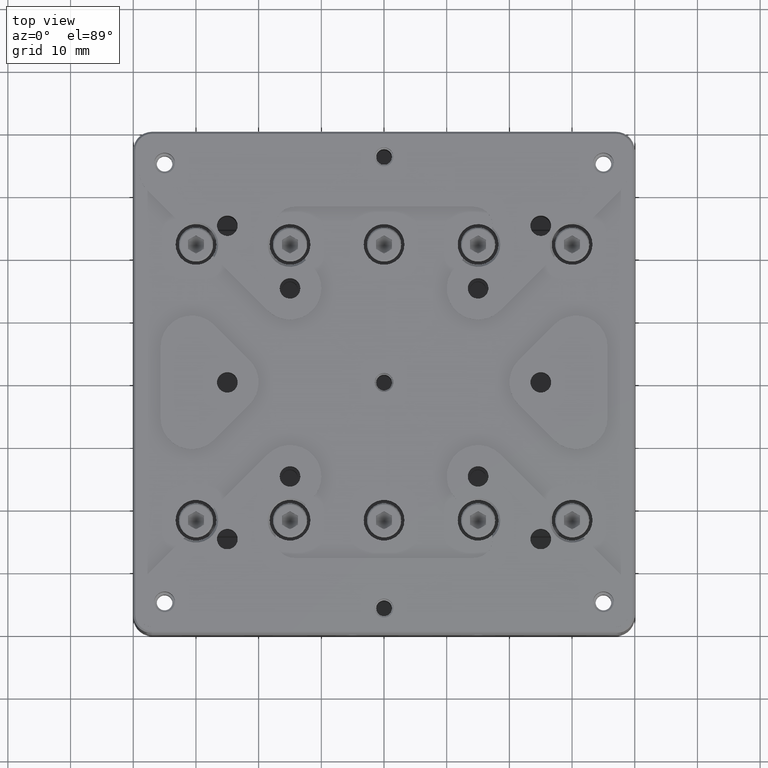
[diagram: clean part render]
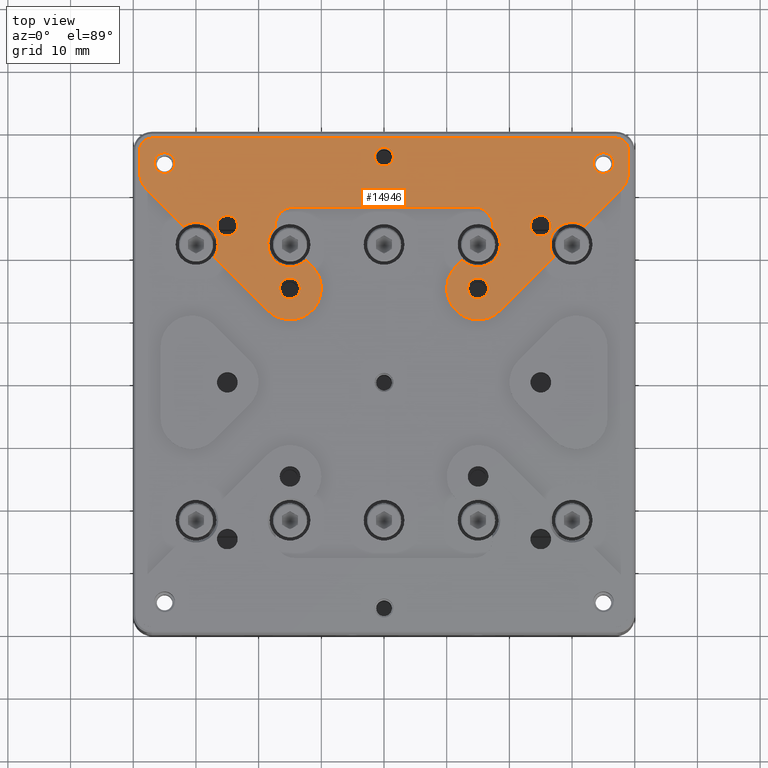
[diagram: same view with one face highlighted and labeled with its STEP entity id]
A machine part, top view. The second image highlights one B-rep face of the part: STEP entity #14946.
In plain terms, the highlighted planar face has unit normal (0, 0, 1).
Its self-contained STEP definition (entity closure, byte-faithful):
#63 = ORIENTED_EDGE ( 'NONE', *, *, #15673, .T. ) ;
#90 = AXIS2_PLACEMENT_3D ( 'NONE', #2022, #17900, #4223 ) ;
#97 = DIRECTION ( 'NONE',  ( 0.000000000000000000, 0.000000000000000000, -1.000000000000000000 ) ) ;
#105 = CARTESIAN_POINT ( 'NONE',  ( 37.00000000000000000, 39.00000000000000000, 13.50000000000000000 ) ) ;
#188 = CARTESIAN_POINT ( 'NONE',  ( -12.45448729300002100, 19.52555766354505096, 13.50000000007865886 ) ) ;
#375 = DIRECTION ( 'NONE',  ( 1.000000000000000000, 9.773090005428777865E-16, 0.000000000000000000 ) ) ;
#423 = EDGE_CURVE ( 'NONE', #2379, #8482, #11636, .T. ) ;
#428 = VERTEX_POINT ( 'NONE', #188 ) ;
#559 = CARTESIAN_POINT ( 'NONE',  ( -30.00000000000000000, 22.00000000000000000, 13.50000000002181899 ) ) ;
#564 = EDGE_CURVE ( 'NONE', #8544, #5840, #13985, .T. ) ;
#660 = EDGE_LOOP ( 'NONE', ( #28258, #22412 ) ) ;
#790 = VERTEX_POINT ( 'NONE', #3554 ) ;
#892 = DIRECTION ( 'NONE',  ( 0.000000000000000000, 0.000000000000000000, 1.000000000000000000 ) ) ;
#924 = CARTESIAN_POINT ( 'NONE',  ( -27.06864897802624625, 19.99758116616625259, 13.50000000001150013 ) ) ;
#950 = AXIS2_PLACEMENT_3D ( 'NONE', #26748, #20272, #6611 ) ;
#961 = VERTEX_POINT ( 'NONE', #7014 ) ;
#982 = EDGE_CURVE ( 'NONE', #20919, #428, #14825, .T. ) ;
#991 = ORIENTED_EDGE ( 'NONE', *, *, #10588, .T. ) ;
#1046 = EDGE_CURVE ( 'NONE', #10829, #17413, #15270, .T. ) ;
#1321 = DIRECTION ( 'NONE',  ( 0.000000000000000000, 0.000000000000000000, -1.000000000000000000 ) ) ;
#1359 = EDGE_LOOP ( 'NONE', ( #6262, #19051 ) ) ;
#1412 = CARTESIAN_POINT ( 'NONE',  ( 14.99999691121000112, 21.99999874730000116, 13.50000000000000000 ) ) ;
#1430 = CARTESIAN_POINT ( 'NONE',  ( -11.46446609406999961, 18.53553390593000216, 13.50000000000000000 ) ) ;
#1510 = CIRCLE ( 'NONE', #17930, 3.549999621044835241 ) ;
#1557 = EDGE_CURVE ( 'NONE', #19972, #17378, #7710, .T. ) ;
#1594 = CARTESIAN_POINT ( 'NONE',  ( -32.00241883383735342, 24.93135102197735264, 13.50000000001653966 ) ) ;
#1680 = VERTEX_POINT ( 'NONE', #19611 ) ;
#1694 = ORIENTED_EDGE ( 'NONE', *, *, #28017, .T. ) ;
#1743 = ORIENTED_EDGE ( 'NONE', *, *, #14846, .T. ) ;
#1757 = CARTESIAN_POINT ( 'NONE',  ( 15.00000000000000000, 15.00000000000000000, 13.50000000000000000 ) ) ;
#1939 = CARTESIAN_POINT ( 'NONE',  ( -35.00000000000000000, 33.58578643762999860, 13.50000000000000000 ) ) ;
#2011 = AXIS2_PLACEMENT_3D ( 'NONE', #3960, #1321, #12938 ) ;
#2022 = CARTESIAN_POINT ( 'NONE',  ( -14.33729505489000111, 25.00000000000000000, 13.50000000000000000 ) ) ;
#2087 = VERTEX_POINT ( 'NONE', #3559 ) ;
#2164 = EDGE_CURVE ( 'NONE', #8482, #2379, #8125, .T. ) ;
#2295 = ORIENTED_EDGE ( 'NONE', *, *, #564, .T. ) ;
#2379 = VERTEX_POINT ( 'NONE', #21159 ) ;
#2512 = EDGE_CURVE ( 'NONE', #428, #23924, #7652, .T. ) ;
#2535 = ORIENTED_EDGE ( 'NONE', *, *, #28888, .T. ) ;
#2544 = EDGE_CURVE ( 'NONE', #4609, #18620, #24107, .T. ) ;
#2618 = VERTEX_POINT ( 'NONE', #15728 ) ;
#2748 = AXIS2_PLACEMENT_3D ( 'NONE', #23726, #8577, #17547 ) ;
#2775 = EDGE_CURVE ( 'NONE', #17710, #5494, #13133, .T. ) ;
#2787 = ORIENTED_EDGE ( 'NONE', *, *, #19033, .T. ) ;
#2913 = DIRECTION ( 'NONE',  ( 1.000000000000000000, 0.000000000000000000, 0.000000000000000000 ) ) ;
#2982 = DIRECTION ( 'NONE',  ( 0.000000000000000000, 0.000000000000000000, -1.000000000000000000 ) ) ;
#3073 = CARTESIAN_POINT ( 'NONE',  ( 14.99999691121000112, 21.99999874730000116, 13.50000000000000000 ) ) ;
#3554 = CARTESIAN_POINT ( 'NONE',  ( 33.34999999999999432, 35.00000000000000000, 13.50000000000000000 ) ) ;
#3559 = CARTESIAN_POINT ( 'NONE',  ( 39.00000000000000000, 33.58578643762999860, 13.50000000000000000 ) ) ;
#3650 = DIRECTION ( 'NONE',  ( 1.000000000000000000, 0.000000000000000000, 0.000000000000000000 ) ) ;
#3657 = VERTEX_POINT ( 'NONE', #24931 ) ;
#3756 = CARTESIAN_POINT ( 'NONE',  ( 0.000000000000000000, 36.00000000000000000, 13.50000000000000000 ) ) ;
#3927 = CARTESIAN_POINT ( 'NONE',  ( -26.64999999999999858, 25.00000000000000000, 13.50000000000000000 ) ) ;
#3960 = CARTESIAN_POINT ( 'NONE',  ( -15.00000000000000000, 22.00000000000000000, 13.50000000007865886 ) ) ;
#4177 = DIRECTION ( 'NONE',  ( 0.000000000000000000, 0.000000000000000000, -1.000000000000000000 ) ) ;
#4213 = EDGE_CURVE ( 'NONE', #8394, #24374, #12177, .T. ) ;
#4220 = CIRCLE ( 'NONE', #28633, 5.000000000000000888 ) ;
#4223 = DIRECTION ( 'NONE',  ( -1.000000000000000000, 0.000000000000000000, 0.000000000000000000 ) ) ;
#4238 = ORIENTED_EDGE ( 'NONE', *, *, #982, .T. ) ;
#4293 = CARTESIAN_POINT ( 'NONE',  ( 11.46446608290041880, 18.53553389476315161, 13.50000000000000000 ) ) ;
#4362 = CARTESIAN_POINT ( 'NONE',  ( 30.00000000000000000, 22.00000000000000000, 13.49999999996500044 ) ) ;
#4429 = VECTOR ( 'NONE', #25837, 999.9999999999998863 ) ;
#4448 = CARTESIAN_POINT ( 'NONE',  ( -17.33729505489000289, 25.00000000000000000, 13.50000000000000000 ) ) ;
#4564 = CIRCLE ( 'NONE', #22408, 1.649999999999998579 ) ;
#4609 = VERTEX_POINT ( 'NONE', #22076 ) ;
#4831 = DIRECTION ( 'NONE',  ( 0.7071067811865470176, 0.7071067811865480168, 0.000000000000000000 ) ) ;
#4963 = CIRCLE ( 'NONE', #12967, 1.649999999999998579 ) ;
#4969 = EDGE_CURVE ( 'NONE', #961, #19753, #19725, .T. ) ;
#4994 = DIRECTION ( 'NONE',  ( 1.000000000000000000, 0.000000000000000000, 0.000000000000000000 ) ) ;
#5016 = EDGE_LOOP ( 'NONE', ( #2535, #22712, #27443, #25905, #18842, #5401, #25002, #19130, #4238, #11116, #15669, #1743, #25026, #14964, #21180, #26787, #2295, #11589, #14331, #25727, #991, #13975, #14483, #12924, #12462, #25225 ) ) ;
#5126 = DIRECTION ( 'NONE',  ( 1.000000000000000000, 5.863854629256248502E-15, 0.000000000000000000 ) ) ;
#5401 = ORIENTED_EDGE ( 'NONE', *, *, #23066, .T. ) ;
#5494 = VERTEX_POINT ( 'NONE', #924 ) ;
#5496 = DIRECTION ( 'NONE',  ( -1.000000000000000000, 0.000000000000000000, 0.000000000000000000 ) ) ;
#5776 = AXIS2_PLACEMENT_3D ( 'NONE', #1757, #14725, #15003 ) ;
#5840 = VERTEX_POINT ( 'NONE', #4293 ) ;
#5948 = DIRECTION ( 'NONE',  ( 0.000000000000000000, 0.000000000000000000, -1.000000000000000000 ) ) ;
#6262 = ORIENTED_EDGE ( 'NONE', *, *, #27590, .T. ) ;
#6287 = VERTEX_POINT ( 'NONE', #13080 ) ;
#6295 = AXIS2_PLACEMENT_3D ( 'NONE', #28011, #7862, #21385 ) ;
#6407 = AXIS2_PLACEMENT_3D ( 'NONE', #3073, #16476, #5126 ) ;
#6409 = CIRCLE ( 'NONE', #11573, 2.000000000000001776 ) ;
#6444 = CARTESIAN_POINT ( 'NONE',  ( -1.500000000000000000, 36.00000000000000000, 13.50000000000000000 ) ) ;
#6516 = DIRECTION ( 'NONE',  ( 0.000000000000000000, 0.000000000000000000, -1.000000000000000000 ) ) ;
#6611 = DIRECTION ( 'NONE',  ( -1.000000000000000000, 0.000000000000000000, 0.000000000000000000 ) ) ;
#6635 = EDGE_CURVE ( 'NONE', #26679, #2618, #15446, .T. ) ;
#6796 = EDGE_CURVE ( 'NONE', #1680, #11415, #29043, .T. ) ;
#6949 = VERTEX_POINT ( 'NONE', #25937 ) ;
#7014 = CARTESIAN_POINT ( 'NONE',  ( 27.06864897801865055, 19.99758116615864978, 13.49999999996528111 ) ) ;
#7035 = FACE_OUTER_BOUND ( 'NONE', #5016, .T. ) ;
#7054 = EDGE_CURVE ( 'NONE', #17413, #10829, #25300, .T. ) ;
#7307 = DIRECTION ( 'NONE',  ( -1.000000000000000000, 0.000000000000000000, 0.000000000000000000 ) ) ;
#7619 = DIRECTION ( 'NONE',  ( 0.7071067811865480168, 0.7071067811865470176, 0.000000000000000000 ) ) ;
#7652 = CIRCLE ( 'NONE', #2011, 3.549999999970170794 ) ;
#7710 = LINE ( 'NONE', #25795, #13783 ) ;
#7768 = CARTESIAN_POINT ( 'NONE',  ( -15.00000000000000000, 15.00000000000000000, 13.50000000000000000 ) ) ;
#7769 = CARTESIAN_POINT ( 'NONE',  ( 32.00241883382999930, 24.93135102196000119, 13.50000000000000000 ) ) ;
#7862 = DIRECTION ( 'NONE',  ( 0.000000000000000000, 0.000000000000000000, -1.000000000000000000 ) ) ;
#7903 = DIRECTION ( 'NONE',  ( 0.000000000000000000, -1.000000000000000000, 0.000000000000000000 ) ) ;
#7973 = CARTESIAN_POINT ( 'NONE',  ( -13.35000000000000142, 15.00000000000000000, 13.50000000000000000 ) ) ;
#8125 = CIRCLE ( 'NONE', #26441, 1.649999999999998579 ) ;
#8202 = EDGE_CURVE ( 'NONE', #18324, #961, #16891, .T. ) ;
#8281 = DIRECTION ( 'NONE',  ( 1.000000000000000000, 0.000000000000000000, 0.000000000000000000 ) ) ;
#8394 = VERTEX_POINT ( 'NONE', #17609 ) ;
#8482 = VERTEX_POINT ( 'NONE', #20366 ) ;
#8544 = VERTEX_POINT ( 'NONE', #16367 ) ;
#8577 = DIRECTION ( 'NONE',  ( 0.000000000000000000, 0.000000000000000000, -1.000000000000000000 ) ) ;
#8614 = CARTESIAN_POINT ( 'NONE',  ( -30.00000000000000000, 22.00000000000000000, 13.50000000002181899 ) ) ;
#8708 = DIRECTION ( 'NONE',  ( 1.000000000000000000, 0.000000000000000000, 0.000000000000000000 ) ) ;
#9148 = VERTEX_POINT ( 'NONE', #24689 ) ;
#9167 = DIRECTION ( 'NONE',  ( -6.313236970238260383E-11, 0.000000000000000000, -1.000000000000000000 ) ) ;
#9298 = CARTESIAN_POINT ( 'NONE',  ( -37.00000000000000000, 37.00000000000000000, 13.50000000000000000 ) ) ;
#9468 = CARTESIAN_POINT ( 'NONE',  ( -15.00000000000000000, 15.00000000000000000, 13.50000000000000000 ) ) ;
#9780 = AXIS2_PLACEMENT_3D ( 'NONE', #7768, #14249, #2913 ) ;
#9850 = VECTOR ( 'NONE', #8281, 1000.000000000000000 ) ;
#9991 = CARTESIAN_POINT ( 'NONE',  ( 32.00241883384580177, 24.93135102198079878, 13.49999999996732036 ) ) ;
#10051 = CARTESIAN_POINT ( 'NONE',  ( 35.00000000000000000, 35.00000000000000000, 13.50000000000000000 ) ) ;
#10088 = CARTESIAN_POINT ( 'NONE',  ( -39.00000000000000000, 37.00000000000000000, 13.50000000000000000 ) ) ;
#10210 = AXIS2_PLACEMENT_3D ( 'NONE', #11729, #18188, #7307 ) ;
#10263 = LINE ( 'NONE', #12337, #19922 ) ;
#10305 = CARTESIAN_POINT ( 'NONE',  ( -39.00000000000000000, 33.58578643762999860, 13.50000000000000000 ) ) ;
#10388 = DIRECTION ( 'NONE',  ( 1.000000000000000000, 0.000000000000000000, 0.000000000000000000 ) ) ;
#10464 = DIRECTION ( 'NONE',  ( 1.000000000000000000, 0.000000000000000000, 0.000000000000000000 ) ) ;
#10588 = EDGE_CURVE ( 'NONE', #19753, #24992, #27927, .T. ) ;
#10666 = DIRECTION ( 'NONE',  ( 0.000000000000000000, 0.000000000000000000, -1.000000000000000000 ) ) ;
#10829 = VERTEX_POINT ( 'NONE', #26288 ) ;
#10891 = EDGE_CURVE ( 'NONE', #23924, #18027, #20727, .T. ) ;
#10919 = DIRECTION ( 'NONE',  ( 0.000000000000000000, 0.000000000000000000, 1.000000000000000000 ) ) ;
#11116 = ORIENTED_EDGE ( 'NONE', *, *, #2512, .T. ) ;
#11145 = EDGE_CURVE ( 'NONE', #28458, #8544, #1510, .T. ) ;
#11226 = AXIS2_PLACEMENT_3D ( 'NONE', #20043, #9167, #18124 ) ;
#11285 = CIRCLE ( 'NONE', #950, 3.000000000000000888 ) ;
#11292 = EDGE_CURVE ( 'NONE', #28934, #17710, #22194, .T. ) ;
#11332 = AXIS2_PLACEMENT_3D ( 'NONE', #17444, #28882, #15099 ) ;
#11415 = VERTEX_POINT ( 'NONE', #7973 ) ;
#11448 = DIRECTION ( 'NONE',  ( 0.7071067811865474617, -0.7071067811865474617, 0.000000000000000000 ) ) ;
#11467 = DIRECTION ( 'NONE',  ( 0.000000000000000000, 0.000000000000000000, 1.000000000000000000 ) ) ;
#11548 = CARTESIAN_POINT ( 'NONE',  ( 35.00000000000000000, 33.58578643762999860, 13.50000000000000000 ) ) ;
#11573 = AXIS2_PLACEMENT_3D ( 'NONE', #9298, #27235, #16075 ) ;
#11586 = DIRECTION ( 'NONE',  ( 0.000000000000000000, 0.000000000000000000, -1.000000000000000000 ) ) ;
#11589 = ORIENTED_EDGE ( 'NONE', *, *, #24990, .T. ) ;
#11636 = CIRCLE ( 'NONE', #28082, 1.649999999999998579 ) ;
#11669 = AXIS2_PLACEMENT_3D ( 'NONE', #9468, #2982, #16372 ) ;
#11729 = CARTESIAN_POINT ( 'NONE',  ( 37.00000000000000000, 37.00000000000000000, 13.50000000000000000 ) ) ;
#11767 = EDGE_CURVE ( 'NONE', #3657, #28934, #28697, .T. ) ;
#11864 = ORIENTED_EDGE ( 'NONE', *, *, #1046, .T. ) ;
#11896 = FACE_BOUND ( 'NONE', #1359, .T. ) ;
#12087 = DIRECTION ( 'NONE',  ( 0.000000000000000000, 0.000000000000000000, -1.000000000000000000 ) ) ;
#12177 = CIRCLE ( 'NONE', #11226, 3.000000000000000888 ) ;
#12337 = CARTESIAN_POINT ( 'NONE',  ( -39.00000000000000000, 40.00000000000000000, 13.50000000000000000 ) ) ;
#12355 = VERTEX_POINT ( 'NONE', #10088 ) ;
#12462 = ORIENTED_EDGE ( 'NONE', *, *, #1557, .T. ) ;
#12469 = DIRECTION ( 'NONE',  ( 0.000000000000000000, 0.000000000000000000, -1.000000000000000000 ) ) ;
#12536 = DIRECTION ( 'NONE',  ( 0.000000000000000000, 0.000000000000000000, -1.000000000000000000 ) ) ;
#12714 = ORIENTED_EDGE ( 'NONE', *, *, #423, .T. ) ;
#12723 = ORIENTED_EDGE ( 'NONE', *, *, #7054, .T. ) ;
#12864 = EDGE_CURVE ( 'NONE', #17933, #790, #26802, .T. ) ;
#12924 = ORIENTED_EDGE ( 'NONE', *, *, #18326, .T. ) ;
#12938 = DIRECTION ( 'NONE',  ( 1.000000000000000000, 9.773090005585258286E-16, 0.000000000000000000 ) ) ;
#12967 = AXIS2_PLACEMENT_3D ( 'NONE', #22952, #12087, #16210 ) ;
#12999 = CARTESIAN_POINT ( 'NONE',  ( 36.64999999999999858, 35.00000000000000000, 13.50000000000000000 ) ) ;
#13080 = CARTESIAN_POINT ( 'NONE',  ( 39.00000000000000000, 37.00000000000000000, 13.50000000000000000 ) ) ;
#13095 = VERTEX_POINT ( 'NONE', #20151 ) ;
#13101 = CARTESIAN_POINT ( 'NONE',  ( 25.00000000000000000, 25.00000000000000000, 13.50000000000000000 ) ) ;
#13128 = EDGE_CURVE ( 'NONE', #23952, #3657, #24352, .T. ) ;
#13133 = CIRCLE ( 'NONE', #22524, 3.550000000027010660 ) ;
#13159 = DIRECTION ( 'NONE',  ( 1.000000000000000000, 0.000000000000000000, 0.000000000000000000 ) ) ;
#13372 = EDGE_CURVE ( 'NONE', #2087, #6287, #25736, .T. ) ;
#13438 = CIRCLE ( 'NONE', #6407, 3.549999621044835241 ) ;
#13641 = LINE ( 'NONE', #22028, #16025 ) ;
#13735 = EDGE_LOOP ( 'NONE', ( #2787, #27812 ) ) ;
#13752 = CARTESIAN_POINT ( 'NONE',  ( -33.34999999999999432, 35.00000000000000000, 13.50000000000000000 ) ) ;
#13783 = VECTOR ( 'NONE', #5496, 1000.000000000000000 ) ;
#13887 = EDGE_LOOP ( 'NONE', ( #12714, #16719 ) ) ;
#13975 = ORIENTED_EDGE ( 'NONE', *, *, #27221, .T. ) ;
#13985 = LINE ( 'NONE', #23106, #16174 ) ;
#14093 = CARTESIAN_POINT ( 'NONE',  ( -40.00000000000000000, 40.00000000000000000, 13.50000000000000000 ) ) ;
#14249 = DIRECTION ( 'NONE',  ( 0.000000000000000000, 0.000000000000000000, 1.000000000000000000 ) ) ;
#14331 = ORIENTED_EDGE ( 'NONE', *, *, #8202, .T. ) ;
#14427 = EDGE_CURVE ( 'NONE', #23039, #9148, #4220, .T. ) ;
#14483 = ORIENTED_EDGE ( 'NONE', *, *, #13372, .T. ) ;
#14519 = DIRECTION ( 'NONE',  ( 1.000000000000000000, 0.000000000000000000, 0.000000000000000000 ) ) ;
#14571 = AXIS2_PLACEMENT_3D ( 'NONE', #26468, #23841, #10464 ) ;
#14614 = AXIS2_PLACEMENT_3D ( 'NONE', #10051, #14619, #16816 ) ;
#14619 = DIRECTION ( 'NONE',  ( 0.000000000000000000, 0.000000000000000000, -1.000000000000000000 ) ) ;
#14725 = DIRECTION ( 'NONE',  ( 0.000000000000000000, 0.000000000000000000, -1.000000000000000000 ) ) ;
#14825 = LINE ( 'NONE', #1430, #4429 ) ;
#14846 = EDGE_CURVE ( 'NONE', #18027, #6949, #11285, .T. ) ;
#14946 = ADVANCED_FACE ( 'NONE', ( #7035, #24986, #18201, #16162, #18796, #23351, #11896, #18645 ), #27612, .T. ) ;
#14964 = ORIENTED_EDGE ( 'NONE', *, *, #4213, .T. ) ;
#14968 = CARTESIAN_POINT ( 'NONE',  ( -37.00000000000000000, 39.00000000000000000, 13.50000000000000000 ) ) ;
#14989 = AXIS2_PLACEMENT_3D ( 'NONE', #19669, #28635, #3650 ) ;
#15003 = DIRECTION ( 'NONE',  ( 1.000000000000000000, 0.000000000000000000, 0.000000000000000000 ) ) ;
#15099 = DIRECTION ( 'NONE',  ( 1.000000000000000000, 0.000000000000000000, 0.000000000000000000 ) ) ;
#15207 = AXIS2_PLACEMENT_3D ( 'NONE', #15224, #5948, #21377 ) ;
#15220 = CARTESIAN_POINT ( 'NONE',  ( 25.00000000000000000, 25.00000000000000000, 13.50000000000000000 ) ) ;
#15224 = CARTESIAN_POINT ( 'NONE',  ( -15.00000000000000000, 15.00000000000000000, 13.50000000000000000 ) ) ;
#15270 = CIRCLE ( 'NONE', #23713, 1.649999999999998579 ) ;
#15379 = DIRECTION ( 'NONE',  ( 1.000000000000000000, 0.000000000000000000, 0.000000000000000000 ) ) ;
#15446 = CIRCLE ( 'NONE', #26693, 1.500000000000000000 ) ;
#15457 = CARTESIAN_POINT ( 'NONE',  ( 37.82842712474809588, 30.75735931288189917, 13.50000000000000000 ) ) ;
#15543 = DIRECTION ( 'NONE',  ( 0.000000000000000000, 0.000000000000000000, 1.000000000000000000 ) ) ;
#15580 = EDGE_LOOP ( 'NONE', ( #63, #16467 ) ) ;
#15669 = ORIENTED_EDGE ( 'NONE', *, *, #10891, .T. ) ;
#15673 = EDGE_CURVE ( 'NONE', #2618, #26679, #27758, .T. ) ;
#15728 = CARTESIAN_POINT ( 'NONE',  ( 1.500000000000000000, 36.00000000000000000, 13.50000000000000000 ) ) ;
#16025 = VECTOR ( 'NONE', #11448, 1000.000000000000114 ) ;
#16075 = DIRECTION ( 'NONE',  ( -1.000000000000000000, 0.000000000000000000, 0.000000000000000000 ) ) ;
#16162 = FACE_BOUND ( 'NONE', #26591, .T. ) ;
#16174 = VECTOR ( 'NONE', #23253, 1000.000000000000000 ) ;
#16180 = EDGE_CURVE ( 'NONE', #13095, #27265, #4963, .T. ) ;
#16210 = DIRECTION ( 'NONE',  ( 1.000000000000000000, 0.000000000000000000, 0.000000000000000000 ) ) ;
#16367 = CARTESIAN_POINT ( 'NONE',  ( 12.45452919279722082, 19.52559740086439888, 13.49997883246557961 ) ) ;
#16372 = DIRECTION ( 'NONE',  ( 1.000000000000000000, 0.000000000000000000, 0.000000000000000000 ) ) ;
#16467 = ORIENTED_EDGE ( 'NONE', *, *, #6635, .T. ) ;
#16476 = DIRECTION ( 'NONE',  ( 0.000000000000000000, 0.000000000000000000, -1.000000000000000000 ) ) ;
#16600 = EDGE_CURVE ( 'NONE', #24374, #28458, #13438, .T. ) ;
#16698 = CARTESIAN_POINT ( 'NONE',  ( -26.44999999997299867, 22.00000000000000000, 13.50000000002181899 ) ) ;
#16719 = ORIENTED_EDGE ( 'NONE', *, *, #2164, .T. ) ;
#16816 = DIRECTION ( 'NONE',  ( 1.000000000000000000, 0.000000000000000000, 0.000000000000000000 ) ) ;
#16891 = LINE ( 'NONE', #26006, #27281 ) ;
#16940 = AXIS2_PLACEMENT_3D ( 'NONE', #14093, #11467, #20412 ) ;
#17216 = CARTESIAN_POINT ( 'NONE',  ( 39.00000000000000000, 40.00000000000000000, 13.50000000000000000 ) ) ;
#17378 = VERTEX_POINT ( 'NONE', #14968 ) ;
#17390 = CARTESIAN_POINT ( 'NONE',  ( -37.82842712475000013, 30.75735931287999847, 13.50000000000000000 ) ) ;
#17408 = CARTESIAN_POINT ( 'NONE',  ( -40.00000000000000000, 28.00000000000000000, 13.50000000000000000 ) ) ;
#17413 = VERTEX_POINT ( 'NONE', #3927 ) ;
#17444 = CARTESIAN_POINT ( 'NONE',  ( 0.000000000000000000, 36.00000000000000000, 13.50000000000000000 ) ) ;
#17547 = DIRECTION ( 'NONE',  ( 1.000000000000000000, 0.000000000000000000, 0.000000000000000000 ) ) ;
#17609 = CARTESIAN_POINT ( 'NONE',  ( 14.33729505412411953, 28.00000000000000000, 13.50000000000000000 ) ) ;
#17710 = VERTEX_POINT ( 'NONE', #16698 ) ;
#17797 = ORIENTED_EDGE ( 'NONE', *, *, #12864, .T. ) ;
#17900 = DIRECTION ( 'NONE',  ( 0.000000000000000000, 0.000000000000000000, -1.000000000000000000 ) ) ;
#17930 = AXIS2_PLACEMENT_3D ( 'NONE', #1412, #25975, #10388 ) ;
#17933 = VERTEX_POINT ( 'NONE', #12999 ) ;
#17967 = VECTOR ( 'NONE', #24718, 1000.000000000000114 ) ;
#18027 = VERTEX_POINT ( 'NONE', #4448 ) ;
#18041 = EDGE_CURVE ( 'NONE', #17378, #12355, #6409, .T. ) ;
#18124 = DIRECTION ( 'NONE',  ( -1.000000000000000000, 0.000000000000000000, 6.313236970238257798E-11 ) ) ;
#18188 = DIRECTION ( 'NONE',  ( 0.000000000000000000, 0.000000000000000000, 1.000000000000000000 ) ) ;
#18201 = FACE_BOUND ( 'NONE', #660, .T. ) ;
#18240 = CIRCLE ( 'NONE', #14989, 1.649999999999998579 ) ;
#18324 = VERTEX_POINT ( 'NONE', #25112 ) ;
#18326 = EDGE_CURVE ( 'NONE', #6287, #19972, #21463, .T. ) ;
#18341 = DIRECTION ( 'NONE',  ( 1.000000000000000000, 0.000000000000000000, 0.000000000000000000 ) ) ;
#18431 = CARTESIAN_POINT ( 'NONE',  ( 17.32084749064679841, 24.68628858391334902, 13.50000044914789932 ) ) ;
#18620 = VERTEX_POINT ( 'NONE', #28479 ) ;
#18645 = FACE_BOUND ( 'NONE', #13735, .T. ) ;
#18796 = FACE_BOUND ( 'NONE', #26118, .T. ) ;
#18842 = ORIENTED_EDGE ( 'NONE', *, *, #2775, .T. ) ;
#19033 = EDGE_CURVE ( 'NONE', #18620, #4609, #4564, .T. ) ;
#19051 = ORIENTED_EDGE ( 'NONE', *, *, #6796, .T. ) ;
#19130 = ORIENTED_EDGE ( 'NONE', *, *, #19686, .T. ) ;
#19422 = DIRECTION ( 'NONE',  ( 0.000000000000000000, 1.000000000000000000, 0.000000000000000000 ) ) ;
#19611 = CARTESIAN_POINT ( 'NONE',  ( -16.65000000000000213, 15.00000000000000000, 13.50000000000000000 ) ) ;
#19657 = VECTOR ( 'NONE', #19422, 1000.000000000000000 ) ;
#19669 = CARTESIAN_POINT ( 'NONE',  ( -35.00000000000000000, 35.00000000000000000, 13.50000000000000000 ) ) ;
#19686 = EDGE_CURVE ( 'NONE', #9148, #20919, #23397, .T. ) ;
#19725 = CIRCLE ( 'NONE', #28647, 3.550000000027010660 ) ;
#19753 = VERTEX_POINT ( 'NONE', #9991 ) ;
#19757 = DIRECTION ( 'NONE',  ( 1.000000000000000000, 0.000000000000000000, 0.000000000000000000 ) ) ;
#19922 = VECTOR ( 'NONE', #7903, 1000.000000000000000 ) ;
#19937 = EDGE_CURVE ( 'NONE', #27265, #13095, #18240, .T. ) ;
#19972 = VERTEX_POINT ( 'NONE', #105 ) ;
#20025 = CARTESIAN_POINT ( 'NONE',  ( -11.46446609406750028, 18.53553390593250327, 13.50000000000000000 ) ) ;
#20042 = CARTESIAN_POINT ( 'NONE',  ( 15.00000000000000000, 15.00000000000000000, 13.50000000000000000 ) ) ;
#20043 = CARTESIAN_POINT ( 'NONE',  ( 14.33729505312930108, 25.00000000000000000, 13.50000000000000000 ) ) ;
#20151 = CARTESIAN_POINT ( 'NONE',  ( -36.64999999999999858, 35.00000000000000000, 13.50000000000000000 ) ) ;
#20214 = DIRECTION ( 'NONE',  ( -1.000000000000000000, 5.204170427930421283E-15, 0.000000000000000000 ) ) ;
#20272 = DIRECTION ( 'NONE',  ( 0.000000000000000000, 0.000000000000000000, -1.000000000000000000 ) ) ;
#20366 = CARTESIAN_POINT ( 'NONE',  ( 23.34999999999999787, 25.00000000000000000, 13.50000000000000000 ) ) ;
#20412 = DIRECTION ( 'NONE',  ( 1.000000000000000000, 0.000000000000000000, 0.000000000000000000 ) ) ;
#20708 = VECTOR ( 'NONE', #4831, 1000.000000000000000 ) ;
#20727 = CIRCLE ( 'NONE', #90, 3.000000000000000888 ) ;
#20754 = EDGE_CURVE ( 'NONE', #6949, #8394, #23872, .T. ) ;
#20919 = VERTEX_POINT ( 'NONE', #20025 ) ;
#21113 = CARTESIAN_POINT ( 'NONE',  ( -25.00000000000000000, 25.00000000000000000, 13.50000000000000000 ) ) ;
#21137 = CIRCLE ( 'NONE', #14571, 5.000000000000000888 ) ;
#21159 = CARTESIAN_POINT ( 'NONE',  ( 26.64999999999999858, 25.00000000000000000, 13.50000000000000000 ) ) ;
#21180 = ORIENTED_EDGE ( 'NONE', *, *, #16600, .T. ) ;
#21236 = AXIS2_PLACEMENT_3D ( 'NONE', #8614, #10666, #15379 ) ;
#21377 = DIRECTION ( 'NONE',  ( 1.000000000000000000, 0.000000000000000000, 0.000000000000000000 ) ) ;
#21385 = DIRECTION ( 'NONE',  ( 1.000000000000000000, 0.000000000000000000, 0.000000000000000000 ) ) ;
#21463 = CIRCLE ( 'NONE', #10210, 2.000000000000001776 ) ;
#21484 = DIRECTION ( 'NONE',  ( 1.000000000000000000, 0.000000000000000000, 0.000000000000000000 ) ) ;
#22028 = CARTESIAN_POINT ( 'NONE',  ( -27.06864897803999881, 19.99758116618000159, 13.50000000000000000 ) ) ;
#22052 = CARTESIAN_POINT ( 'NONE',  ( -17.32084786127379772, 24.68629209218209652, 13.50000000003896083 ) ) ;
#22076 = CARTESIAN_POINT ( 'NONE',  ( 13.35000000000000142, 15.00000000000000000, 13.50000000000000000 ) ) ;
#22194 = CIRCLE ( 'NONE', #21236, 3.550000000027010660 ) ;
#22408 = AXIS2_PLACEMENT_3D ( 'NONE', #20042, #6516, #24041 ) ;
#22412 = ORIENTED_EDGE ( 'NONE', *, *, #16180, .T. ) ;
#22524 = AXIS2_PLACEMENT_3D ( 'NONE', #559, #11586, #18341 ) ;
#22670 = CIRCLE ( 'NONE', #27370, 4.000000000000000000 ) ;
#22712 = ORIENTED_EDGE ( 'NONE', *, *, #13128, .T. ) ;
#22952 = CARTESIAN_POINT ( 'NONE',  ( -35.00000000000000000, 35.00000000000000000, 13.50000000000000000 ) ) ;
#23039 = VERTEX_POINT ( 'NONE', #26724 ) ;
#23066 = EDGE_CURVE ( 'NONE', #5494, #23039, #13641, .T. ) ;
#23106 = CARTESIAN_POINT ( 'NONE',  ( 12.45454311355999977, 19.52561093793000069, 13.50000000000000000 ) ) ;
#23253 = DIRECTION ( 'NONE',  ( -0.7071067767192650289, -0.7071067856538300056, 0.000000000000000000 ) ) ;
#23351 = FACE_BOUND ( 'NONE', #13887, .T. ) ;
#23397 = CIRCLE ( 'NONE', #9780, 5.000000000000000888 ) ;
#23713 = AXIS2_PLACEMENT_3D ( 'NONE', #21113, #12469, #14519 ) ;
#23726 = CARTESIAN_POINT ( 'NONE',  ( -25.00000000000000000, 25.00000000000000000, 13.50000000000000000 ) ) ;
#23841 = DIRECTION ( 'NONE',  ( 0.000000000000000000, 0.000000000000000000, 1.000000000000000000 ) ) ;
#23872 = LINE ( 'NONE', #17408, #9850 ) ;
#23924 = VERTEX_POINT ( 'NONE', #22052 ) ;
#23952 = VERTEX_POINT ( 'NONE', #10305 ) ;
#24041 = DIRECTION ( 'NONE',  ( 1.000000000000000000, 0.000000000000000000, 0.000000000000000000 ) ) ;
#24107 = CIRCLE ( 'NONE', #5776, 1.649999999999998579 ) ;
#24175 = DIRECTION ( 'NONE',  ( 0.000000000000000000, 0.000000000000000000, -1.000000000000000000 ) ) ;
#24352 = CIRCLE ( 'NONE', #24817, 4.000000000000000000 ) ;
#24374 = VERTEX_POINT ( 'NONE', #18431 ) ;
#24689 = CARTESIAN_POINT ( 'NONE',  ( -10.00000000000000000, 15.00000000000000000, 13.50000000000000000 ) ) ;
#24718 = DIRECTION ( 'NONE',  ( 0.7071067811871544206, -0.7071067811859405028, 0.000000000000000000 ) ) ;
#24817 = AXIS2_PLACEMENT_3D ( 'NONE', #1939, #10919, #8708 ) ;
#24931 = CARTESIAN_POINT ( 'NONE',  ( -37.82842712474689506, 30.75735931288069835, 13.50000000000000000 ) ) ;
#24986 = FACE_BOUND ( 'NONE', #15580, .T. ) ;
#24990 = EDGE_CURVE ( 'NONE', #5840, #18324, #21137, .T. ) ;
#24992 = VERTEX_POINT ( 'NONE', #15457 ) ;
#25002 = ORIENTED_EDGE ( 'NONE', *, *, #14427, .T. ) ;
#25026 = ORIENTED_EDGE ( 'NONE', *, *, #20754, .T. ) ;
#25112 = CARTESIAN_POINT ( 'NONE',  ( 18.53553390593000216, 11.46446609406999961, 13.50000000000000000 ) ) ;
#25225 = ORIENTED_EDGE ( 'NONE', *, *, #18041, .T. ) ;
#25300 = CIRCLE ( 'NONE', #2748, 1.649999999999998579 ) ;
#25455 = CARTESIAN_POINT ( 'NONE',  ( -15.00000000000000000, 15.00000000000000000, 13.50000000000000000 ) ) ;
#25727 = ORIENTED_EDGE ( 'NONE', *, *, #4969, .T. ) ;
#25736 = LINE ( 'NONE', #17216, #19657 ) ;
#25795 = CARTESIAN_POINT ( 'NONE',  ( -40.00000000000000000, 39.00000000000000000, 13.50000000000000000 ) ) ;
#25837 = DIRECTION ( 'NONE',  ( -0.7071049536903459831, 0.7071086086780260516, 0.000000000000000000 ) ) ;
#25905 = ORIENTED_EDGE ( 'NONE', *, *, #11292, .T. ) ;
#25937 = CARTESIAN_POINT ( 'NONE',  ( -14.33729505499499979, 28.00000000000000000, 13.50000000000000000 ) ) ;
#25975 = DIRECTION ( 'NONE',  ( 0.000000000000000000, 0.000000000000000000, -1.000000000000000000 ) ) ;
#26006 = CARTESIAN_POINT ( 'NONE',  ( 18.53553390593000216, 11.46446609406999961, 13.50000000000000000 ) ) ;
#26118 = EDGE_LOOP ( 'NONE', ( #11864, #12723 ) ) ;
#26288 = CARTESIAN_POINT ( 'NONE',  ( -23.34999999999999787, 25.00000000000000000, 13.50000000000000000 ) ) ;
#26441 = AXIS2_PLACEMENT_3D ( 'NONE', #13101, #12536, #21484 ) ;
#26468 = CARTESIAN_POINT ( 'NONE',  ( 15.00000000000000000, 15.00000000000000000, 13.50000000000000000 ) ) ;
#26591 = EDGE_LOOP ( 'NONE', ( #17797, #1694 ) ) ;
#26679 = VERTEX_POINT ( 'NONE', #6444 ) ;
#26693 = AXIS2_PLACEMENT_3D ( 'NONE', #3756, #4177, #13159 ) ;
#26724 = CARTESIAN_POINT ( 'NONE',  ( -18.53553390593135219, 11.46446609406862116, 13.50000000000000000 ) ) ;
#26748 = CARTESIAN_POINT ( 'NONE',  ( -14.33729505489000111, 25.00000000000000000, 13.50000000000000000 ) ) ;
#26787 = ORIENTED_EDGE ( 'NONE', *, *, #11145, .T. ) ;
#26802 = CIRCLE ( 'NONE', #14614, 1.649999999999998579 ) ;
#26940 = CIRCLE ( 'NONE', #6295, 1.649999999999998579 ) ;
#27221 = EDGE_CURVE ( 'NONE', #24992, #2087, #22670, .T. ) ;
#27235 = DIRECTION ( 'NONE',  ( 0.000000000000000000, 0.000000000000000000, 1.000000000000000000 ) ) ;
#27265 = VERTEX_POINT ( 'NONE', #13752 ) ;
#27281 = VECTOR ( 'NONE', #7619, 1000.000000000000000 ) ;
#27370 = AXIS2_PLACEMENT_3D ( 'NONE', #11548, #15543, #20214 ) ;
#27443 = ORIENTED_EDGE ( 'NONE', *, *, #11767, .T. ) ;
#27590 = EDGE_CURVE ( 'NONE', #11415, #1680, #27870, .T. ) ;
#27612 = PLANE ( 'NONE',  #16940 ) ;
#27758 = CIRCLE ( 'NONE', #11332, 1.500000000000000000 ) ;
#27812 = ORIENTED_EDGE ( 'NONE', *, *, #2544, .T. ) ;
#27870 = CIRCLE ( 'NONE', #15207, 1.650000000000000355 ) ;
#27927 = LINE ( 'NONE', #7769, #20708 ) ;
#28011 = CARTESIAN_POINT ( 'NONE',  ( 35.00000000000000000, 35.00000000000000000, 13.50000000000000000 ) ) ;
#28017 = EDGE_CURVE ( 'NONE', #790, #17933, #26940, .T. ) ;
#28082 = AXIS2_PLACEMENT_3D ( 'NONE', #15220, #24175, #19757 ) ;
#28258 = ORIENTED_EDGE ( 'NONE', *, *, #19937, .T. ) ;
#28379 = CARTESIAN_POINT ( 'NONE',  ( 18.54999653225485190, 21.99999874730000116, 13.50000000000000000 ) ) ;
#28458 = VERTEX_POINT ( 'NONE', #28379 ) ;
#28479 = CARTESIAN_POINT ( 'NONE',  ( 16.65000000000000213, 15.00000000000000000, 13.50000000000000000 ) ) ;
#28633 = AXIS2_PLACEMENT_3D ( 'NONE', #25455, #892, #4994 ) ;
#28635 = DIRECTION ( 'NONE',  ( 0.000000000000000000, 0.000000000000000000, -1.000000000000000000 ) ) ;
#28647 = AXIS2_PLACEMENT_3D ( 'NONE', #4362, #97, #375 ) ;
#28697 = LINE ( 'NONE', #17390, #17967 ) ;
#28882 = DIRECTION ( 'NONE',  ( 0.000000000000000000, 0.000000000000000000, -1.000000000000000000 ) ) ;
#28888 = EDGE_CURVE ( 'NONE', #12355, #23952, #10263, .T. ) ;
#28934 = VERTEX_POINT ( 'NONE', #1594 ) ;
#29043 = CIRCLE ( 'NONE', #11669, 1.650000000000000355 ) ;